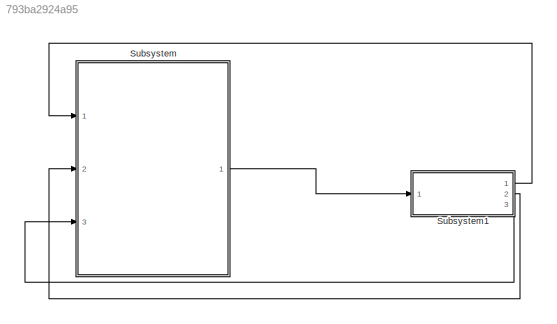
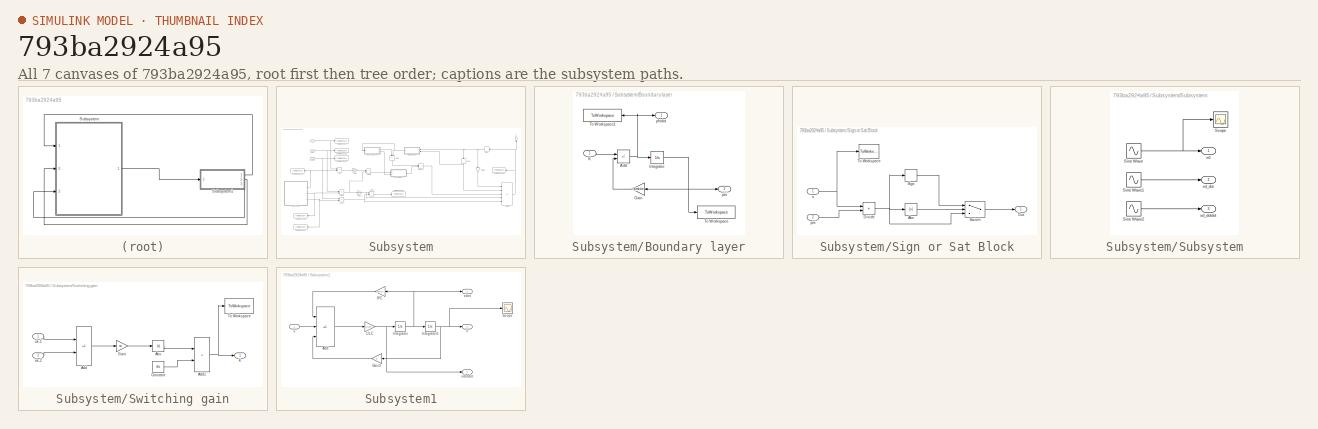
[diagram: thumbnail index - all 7 canvases of the model, root first then tree order]
MODEL slx_793ba2924a95
KIND model
CONFIG AbsTol = auto
CONFIG EnableMultiTasking = off
CONFIG FixedStep = auto
CONFIG MaxStep = auto
CONFIG MinStep = auto
CONFIG RelTol = 1e-3
CONFIG SampleTimeConstraint = Unconstrained
CONFIG SolverName = ode5
CONFIG StartTime = 0.0
CONFIG StopTime = 30
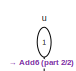
[diagram: Subsystem - part 1/2, top right region]
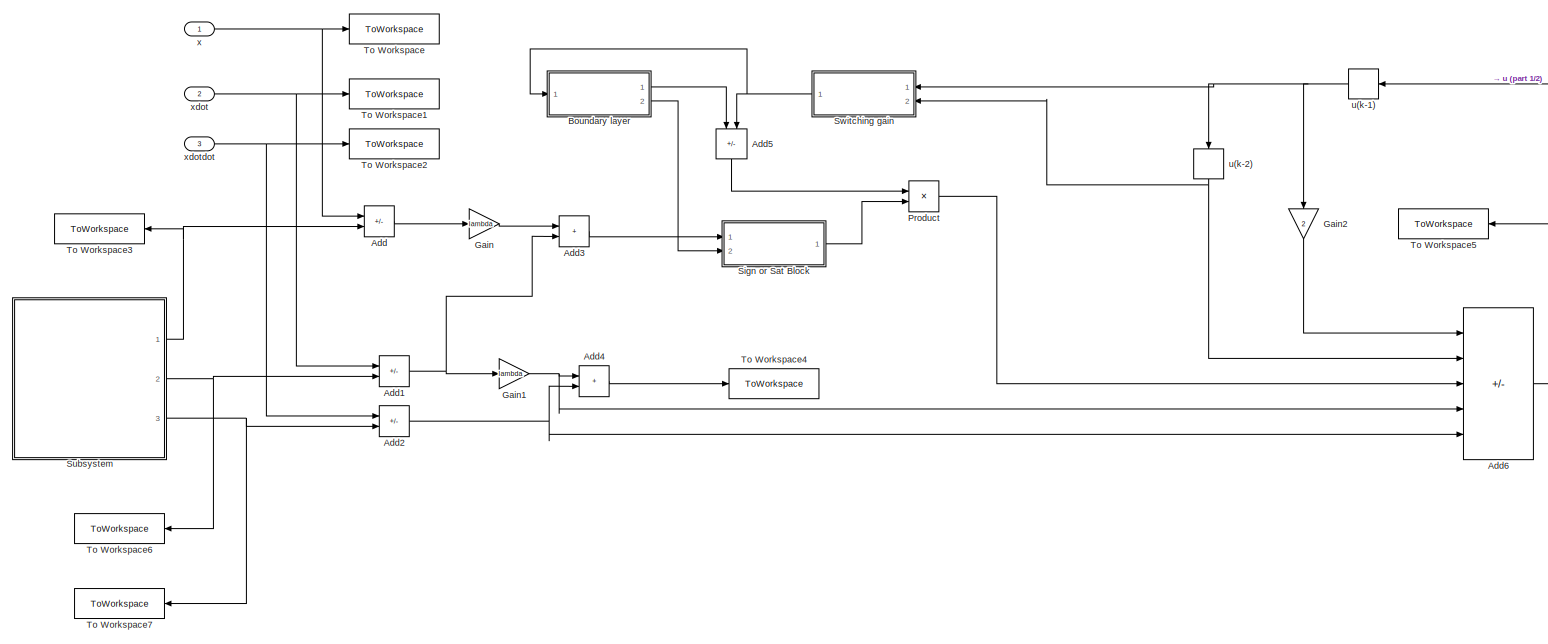
[diagram: Subsystem - part 2/2, most of the canvas]
BLOCK [SubSystem] Subsystem
  Ports = [3, 1]
  RequestExecContextInheritance = off
BLOCK [Sum] Subsystem/Add
  IconShape = rectangular
  Inputs = +-
  Ports = [2, 1]
BLOCK [Sum] Subsystem/Add1
  IconShape = rectangular
  Inputs = +-
  Ports = [2, 1]
BLOCK [Sum] Subsystem/Add2
  IconShape = rectangular
  Inputs = +-
  Ports = [2, 1]
BLOCK [Sum] Subsystem/Add3
  IconShape = rectangular
  Ports = [2, 1]
BLOCK [Sum] Subsystem/Add4
  IconShape = rectangular
  Ports = [2, 1]
BLOCK [Sum] Subsystem/Add5
  IconShape = rectangular
  Inputs = -+
  NameLocation = left
  Ports = [2, 1]
BLOCK [Sum] Subsystem/Add6
  IconShape = rectangular
  Inputs = +----
  Ports = [5, 1]
BLOCK [SubSystem] Subsystem/Boundary layer
  Ports = [1, 2]
  RequestExecContextInheritance = off
BLOCK [Sum] Subsystem/Boundary layer/Add
  IconShape = rectangular
  Inputs = +-
  Ports = [2, 1]
BLOCK [Gain] Subsystem/Boundary layer/Gain
  Gain = lambda
  NameLocation = top
BLOCK [Integrator] Subsystem/Boundary layer/Integrator
  Ports = [1, 1]
BLOCK [Inport] Subsystem/Boundary layer/K
BLOCK [ToWorkspace] Subsystem/Boundary layer/To Workspace
  FixptAsFi = on
  MaxDataPoints = inf
  Ports = [1]
  SampleTime = -1
  VariableName = phi
BLOCK [ToWorkspace] Subsystem/Boundary layer/To Workspace1
  FixptAsFi = on
  MaxDataPoints = inf
  NameLocation = top
  Ports = [1]
  SampleTime = -1
  VariableName = phidot
BLOCK [Outport] Subsystem/Boundary layer/phi
  Port = 2
BLOCK [Outport] Subsystem/Boundary layer/phidot
BLOCK [Gain] Subsystem/Gain
  Gain = lambda
BLOCK [Gain] Subsystem/Gain1
  Gain = lambda
BLOCK [Gain] Subsystem/Gain2
  Gain = 2
  NameLocation = left
BLOCK [Product] Subsystem/Product
  Ports = [2, 1]
BLOCK [SubSystem] Subsystem/Sign or Sat Block
  Ports = [2, 1]
  RequestExecContextInheritance = off
BLOCK [Abs] Subsystem/Sign or Sat Block/Abs 
  SaturateOnIntegerOverflow = off
BLOCK [Product] Subsystem/Sign or Sat Block/Divide
  Inputs = */
  Ports = [2, 1]
BLOCK [Outport] Subsystem/Sign or Sat Block/Out
BLOCK [Signum] Subsystem/Sign or Sat Block/Sign 
BLOCK [Switch] Subsystem/Sign or Sat Block/Switch
  Criteria = u2 > Threshold
  InputSameDT = off
  SaturateOnIntegerOverflow = off
  Threshold = 1
BLOCK [ToWorkspace] Subsystem/Sign or Sat Block/To Workspace
  FixptAsFi = on
  MaxDataPoints = inf
  Ports = [1]
  SampleTime = -1
  VariableName = s
BLOCK [Inport] Subsystem/Sign or Sat Block/phi
  Port = 2
BLOCK [Inport] Subsystem/Sign or Sat Block/s
BLOCK [SubSystem] Subsystem/Subsystem
  Ports = [0, 3]
  RequestExecContextInheritance = off
BLOCK [Scope] Subsystem/Subsystem/Scope
  Floating = off
  NumInputPorts = 1
  Ports = [1]
  ScopeSpecificationString = Simulink.scopes.TimeScopeBlockCfg('CurrentConfiguration', extmgr.ConfigurationSet(extmgr.Configuration('Core','General UI',true),extmgr.Configuration('Core','Source UI',true),extmgr.Configuration('Sources','WiredSimulink',true),extmgr.Configuration('Visuals','Time Domain',true,'SerializedDisplays',{struct('MinYLimReal','-1.25','MaxYLimReal','1.25','YLabelReal','','MinYLimMag','0.00000','MaxYLimMag...<+1311ch>
BLOCK [Sin] Subsystem/Subsystem/Sine Wave
  Frequency = pi/2
  Ports = [0, 1]
  SampleTime = 0.0001
BLOCK [Sin] Subsystem/Subsystem/Sine Wave1
  Amplitude = 1*pi/2
  Frequency = pi/2
  Phase = pi/2
  Ports = [0, 1]
  SampleTime = 0.0001
BLOCK [Sin] Subsystem/Subsystem/Sine Wave2
  Amplitude = -1*pi/2*pi/2
  Frequency = pi/2
  Ports = [0, 1]
  SampleTime = 0.0001
BLOCK [Outport] Subsystem/Subsystem/xd
BLOCK [Outport] Subsystem/Subsystem/xd_dot
  Port = 2
BLOCK [Outport] Subsystem/Subsystem/xd_dotdot
  Port = 3
BLOCK [SubSystem] Subsystem/Switching gain
  NameLocation = top
  Ports = [2, 1]
  RequestExecContextInheritance = off
BLOCK [Abs] Subsystem/Switching gain/Abs
  SaturateOnIntegerOverflow = off
BLOCK [Sum] Subsystem/Switching gain/Add
  IconShape = rectangular
  Inputs = -+
  Ports = [2, 1]
BLOCK [Sum] Subsystem/Switching gain/Add1
  IconShape = rectangular
  Ports = [2, 1]
BLOCK [Constant] Subsystem/Switching gain/Constant
  Value = eta
BLOCK [Gain] Subsystem/Switching gain/Gain
  Gain = su
BLOCK [Outport] Subsystem/Switching gain/K
BLOCK [ToWorkspace] Subsystem/Switching gain/To Workspace
  FixptAsFi = on
  MaxDataPoints = inf
  Ports = [1]
  SampleTime = -1
  VariableName = K
BLOCK [Inport] Subsystem/Switching gain/uk-1
BLOCK [Inport] Subsystem/Switching gain/uk-2
  Port = 2
BLOCK [ToWorkspace] Subsystem/To Workspace
  FixptAsFi = on
  MaxDataPoints = inf
  Ports = [1]
  SampleTime = -1
  VariableName = x
BLOCK [ToWorkspace] Subsystem/To Workspace1
  FixptAsFi = on
  MaxDataPoints = inf
  Ports = [1]
  SampleTime = -1
  VariableName = xdot
BLOCK [ToWorkspace] Subsystem/To Workspace2
  FixptAsFi = on
  MaxDataPoints = inf
  Ports = [1]
  SampleTime = -1
  VariableName = xdotdot
BLOCK [ToWorkspace] Subsystem/To Workspace3
  FixptAsFi = on
  MaxDataPoints = inf
  NameLocation = top
  Ports = [1]
  SampleTime = -1
  VariableName = xd
BLOCK [ToWorkspace] Subsystem/To Workspace4
  FixptAsFi = on
  MaxDataPoints = inf
  Ports = [1]
  SampleTime = -1
  VariableName = sdot
BLOCK [ToWorkspace] Subsystem/To Workspace5
  FixptAsFi = on
  MaxDataPoints = inf
  NameLocation = top
  Ports = [1]
  SampleTime = -1
  VariableName = u
BLOCK [ToWorkspace] Subsystem/To Workspace6
  FixptAsFi = on
  MaxDataPoints = inf
  NameLocation = top
  Ports = [1]
  SampleTime = -1
  VariableName = xd_dot
BLOCK [ToWorkspace] Subsystem/To Workspace7
  FixptAsFi = on
  MaxDataPoints = inf
  NameLocation = top
  Ports = [1]
  SampleTime = -1
  VariableName = xd_dotdot
BLOCK [Outport] Subsystem/u
  NameLocation = right
BLOCK [Memory] Subsystem/u(k-1)
  NameLocation = top
BLOCK [Memory] Subsystem/u(k-2)
  NameLocation = left
BLOCK [Inport] Subsystem/x
BLOCK [Inport] Subsystem/xdot
  Port = 2
BLOCK [Inport] Subsystem/xdotdot
  Port = 3
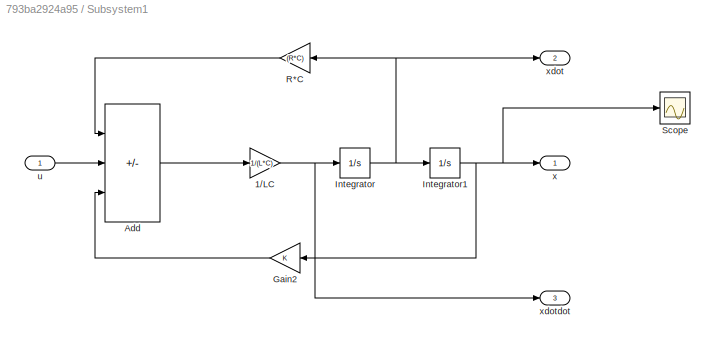
BLOCK [SubSystem] Subsystem1
  Ports = [1, 3]
  RequestExecContextInheritance = off
BLOCK [Gain] Subsystem1/1//LC
  Gain = 1/(L*C)
BLOCK [Sum] Subsystem1/Add
  IconShape = rectangular
  Inputs = -+-
  Ports = [3, 1]
BLOCK [Gain] Subsystem1/Gain2
  NameLocation = top
BLOCK [Integrator] Subsystem1/Integrator
  InitialCondition = pi/2
  Ports = [1, 1]
BLOCK [Integrator] Subsystem1/Integrator1
  Ports = [1, 1]
BLOCK [Gain] Subsystem1/R*C
  Gain = (R*C)
  NameLocation = top
BLOCK [Scope] Subsystem1/Scope
  Floating = off
  NumInputPorts = 1
  Ports = [1]
  ScopeSpecificationString = Simulink.scopes.TimeScopeBlockCfg('CurrentConfiguration', extmgr.ConfigurationSet(extmgr.Configuration('Core','General UI',true),extmgr.Configuration('Core','Source UI',true),extmgr.Configuration('Sources','WiredSimulink',true,'DataLoggingVariableName','ScopeData1'),extmgr.Configuration('Visuals','Time Domain',true,'SerializedDisplays',{struct('MinYLimReal','-1.25','MaxYLimReal','1.25','YLabelReal...<+1352ch>
BLOCK [Inport] Subsystem1/u
BLOCK [Outport] Subsystem1/x
BLOCK [Outport] Subsystem1/xdot
  Port = 2
BLOCK [Outport] Subsystem1/xdotdot
  Port = 3
NET Subsystem/Add1:1 -> Subsystem/Add3:2, Subsystem/Gain1:1
NET Subsystem/Add2:1 -> Subsystem/Add4:2, Subsystem/Add6:5
LINE Subsystem/Add3:1 -> Subsystem/Sign or Sat Block:1
LINE Subsystem/Add4:1 -> Subsystem/To Workspace4:1
LINE Subsystem/Add5:1 -> Subsystem/Product:1
NET Subsystem/Add6:1 -> Subsystem/To Workspace5:1, Subsystem/u(k-1):1, Subsystem/u:1
LINE Subsystem/Add:1 -> Subsystem/Gain:1
NET Subsystem/Boundary layer/Add:1 -> Subsystem/Boundary layer/Integrator:1, Subsystem/Boundary layer/To Workspace1:1, Subsystem/Boundary layer/phidot:1
LINE Subsystem/Boundary layer/Gain:1 -> Subsystem/Boundary layer/Add:2
NET Subsystem/Boundary layer/Integrator:1 -> Subsystem/Boundary layer/Gain:1, Subsystem/Boundary layer/To Workspace:1, Subsystem/Boundary layer/phi:1
LINE Subsystem/Boundary layer/K:1 -> Subsystem/Boundary layer/Add:1
LINE Subsystem/Boundary layer:1 -> Subsystem/Add5:1
LINE Subsystem/Boundary layer:2 -> Subsystem/Sign or Sat Block:2
NET Subsystem/Gain1:1 -> Subsystem/Add4:1, Subsystem/Add6:4
LINE Subsystem/Gain2:1 -> Subsystem/Add6:1
LINE Subsystem/Gain:1 -> Subsystem/Add3:1
LINE Subsystem/Product:1 -> Subsystem/Add6:3
LINE Subsystem/Sign or Sat Block/Abs :1 -> Subsystem/Sign or Sat Block/Switch:2
NET Subsystem/Sign or Sat Block/Divide:1 -> Subsystem/Sign or Sat Block/Abs :1, Subsystem/Sign or Sat Block/Sign :1, Subsystem/Sign or Sat Block/Switch:3
LINE Subsystem/Sign or Sat Block/Sign :1 -> Subsystem/Sign or Sat Block/Switch:1
LINE Subsystem/Sign or Sat Block/Switch:1 -> Subsystem/Sign or Sat Block/Out:1
LINE Subsystem/Sign or Sat Block/phi:1 -> Subsystem/Sign or Sat Block/Divide:2
NET Subsystem/Sign or Sat Block/s:1 -> Subsystem/Sign or Sat Block/Divide:1, Subsystem/Sign or Sat Block/To Workspace:1
LINE Subsystem/Sign or Sat Block:1 -> Subsystem/Product:2
LINE Subsystem/Subsystem/Sine Wave1:1 -> Subsystem/Subsystem/xd_dot:1
LINE Subsystem/Subsystem/Sine Wave2:1 -> Subsystem/Subsystem/xd_dotdot:1
NET Subsystem/Subsystem/Sine Wave:1 -> Subsystem/Subsystem/Scope:1, Subsystem/Subsystem/xd:1
NET Subsystem/Subsystem:1 -> Subsystem/Add:2, Subsystem/To Workspace3:1
NET Subsystem/Subsystem:2 -> Subsystem/Add1:2, Subsystem/To Workspace6:1
NET Subsystem/Subsystem:3 -> Subsystem/Add2:2, Subsystem/To Workspace7:1
LINE Subsystem/Switching gain/Abs:1 -> Subsystem/Switching gain/Add1:1
NET Subsystem/Switching gain/Add1:1 -> Subsystem/Switching gain/K:1, Subsystem/Switching gain/To Workspace:1
LINE Subsystem/Switching gain/Add:1 -> Subsystem/Switching gain/Gain:1
LINE Subsystem/Switching gain/Constant:1 -> Subsystem/Switching gain/Add1:2
LINE Subsystem/Switching gain/Gain:1 -> Subsystem/Switching gain/Abs:1
LINE Subsystem/Switching gain/uk-1:1 -> Subsystem/Switching gain/Add:1
LINE Subsystem/Switching gain/uk-2:1 -> Subsystem/Switching gain/Add:2
NET Subsystem/Switching gain:1 -> Subsystem/Add5:2, Subsystem/Boundary layer:1
NET Subsystem/u(k-1):1 -> Subsystem/Gain2:1, Subsystem/Switching gain:1, Subsystem/u(k-2):1
NET Subsystem/u(k-2):1 -> Subsystem/Add6:2, Subsystem/Switching gain:2
NET Subsystem/x:1 -> Subsystem/Add:1, Subsystem/To Workspace:1
NET Subsystem/xdot:1 -> Subsystem/Add1:1, Subsystem/To Workspace1:1
NET Subsystem/xdotdot:1 -> Subsystem/Add2:1, Subsystem/To Workspace2:1
NET Subsystem1/1//LC:1 -> Subsystem1/Integrator:1, Subsystem1/xdotdot:1
LINE Subsystem1/Add:1 -> Subsystem1/1//LC:1
LINE Subsystem1/Gain2:1 -> Subsystem1/Add:3
NET Subsystem1/Integrator1:1 -> Subsystem1/Gain2:1, Subsystem1/Scope:1, Subsystem1/x:1
NET Subsystem1/Integrator:1 -> Subsystem1/Integrator1:1, Subsystem1/R*C:1, Subsystem1/xdot:1
LINE Subsystem1/R*C:1 -> Subsystem1/Add:1
LINE Subsystem1/u:1 -> Subsystem1/Add:2
LINE Subsystem1:1 -> Subsystem:1
LINE Subsystem1:2 -> Subsystem:2
LINE Subsystem1:3 -> Subsystem:3
LINE Subsystem:1 -> Subsystem1:1
note: NET lines group one-source signal fan-out (src -> all destinations, sorted); 1:1 wires keep LINE
